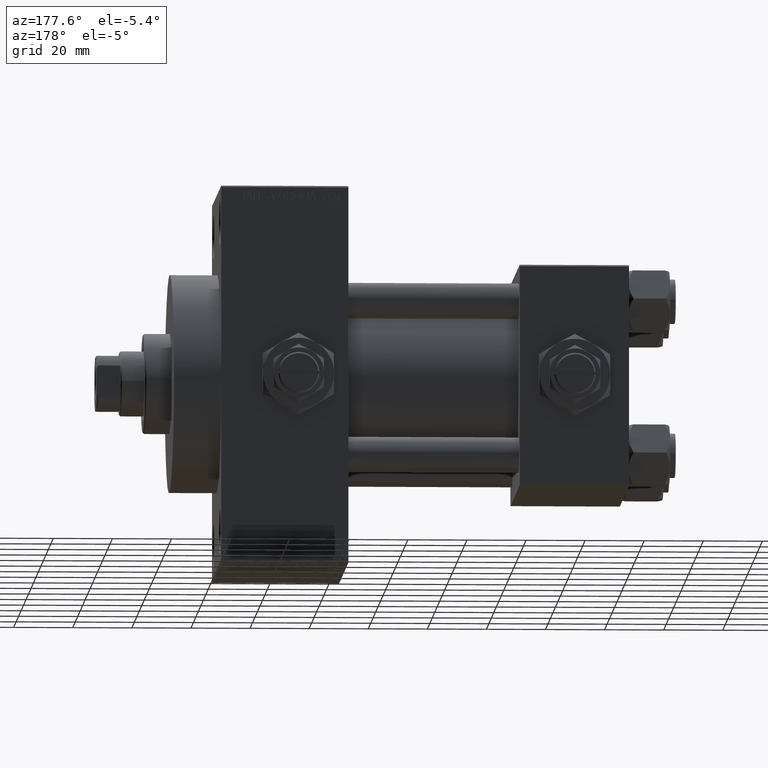
[diagram: clean part render]
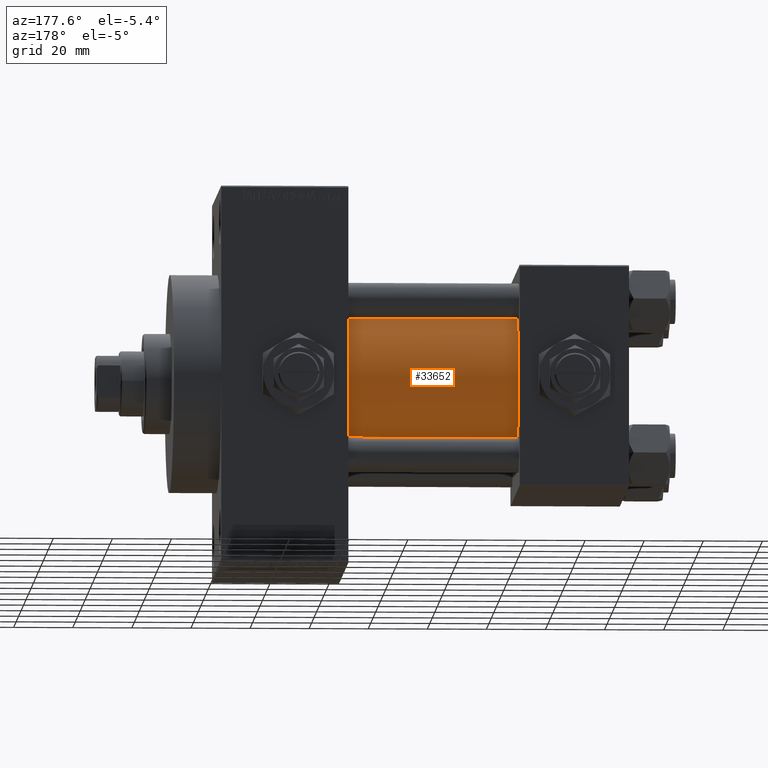
[diagram: same view with one face highlighted and labeled with its STEP entity id]
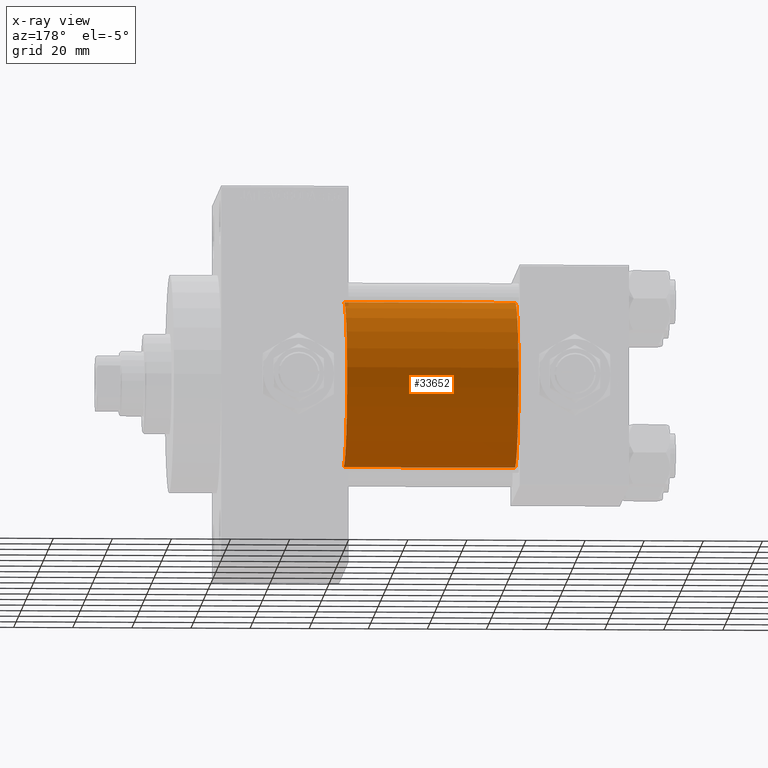
[diagram: x-ray of the same camera — body ghosted, the highlighted face saturated]
A machine part, auxiliary view. The second image highlights one B-rep face of the part: STEP entity #33652.
The next image is the same camera in x-ray: the body ghosted, the highlighted face saturated — about 2% of this face is hidden behind the body in this view.
In plain terms, the highlighted cylindrical surface (partial cylindrical patch) has radius 28 mm, axis along (-1, -0, -0).
Its self-contained STEP definition (entity closure, byte-faithful):
#2617 = EDGE_CURVE ( 'NONE', #33499, #17161, #37315, .T. ) ;
#3452 = CARTESIAN_POINT ( 'NONE',  ( 95.00000000000000000, -2.602085213965210642E-15, 28.00000000000000000 ) ) ;
#6069 = CARTESIAN_POINT ( 'NONE',  ( 37.00000000000000000, -2.602085213965210642E-15, 28.00000000000000000 ) ) ;
#6470 = DIRECTION ( 'NONE',  ( 1.000000000000000000, -0.000000000000000000, 0.000000000000000000 ) ) ;
#6843 = AXIS2_PLACEMENT_3D ( 'NONE', #29644, #6470, #22674 ) ;
#7008 = ORIENTED_EDGE ( 'NONE', *, *, #2617, .F. ) ;
#11138 = LINE ( 'NONE', #38026, #14965 ) ;
#12490 = DIRECTION ( 'NONE',  ( 0.000000000000000000, 0.000000000000000000, -1.000000000000000000 ) ) ;
#14054 = ORIENTED_EDGE ( 'NONE', *, *, #42734, .T. ) ;
#14866 = AXIS2_PLACEMENT_3D ( 'NONE', #42277, #34568, #42747 ) ;
#14965 = VECTOR ( 'NONE', #38513, 1000.000000000000000 ) ;
#15843 = ORIENTED_EDGE ( 'NONE', *, *, #32551, .T. ) ;
#17161 = VERTEX_POINT ( 'NONE', #3452 ) ;
#20486 = ORIENTED_EDGE ( 'NONE', *, *, #39965, .F. ) ;
#22077 = CARTESIAN_POINT ( 'NONE',  ( 95.00000000000000000, 8.269258236473776482E-16, -28.00000000000000000 ) ) ;
#22674 = DIRECTION ( 'NONE',  ( 0.000000000000000000, 0.000000000000000000, 1.000000000000000000 ) ) ;
#24383 = CIRCLE ( 'NONE', #6843, 28.00000000000000000 ) ;
#26274 = CARTESIAN_POINT ( 'NONE',  ( 37.00000000000000000, 8.269258236473776482E-16, -28.00000000000000000 ) ) ;
#26529 = EDGE_LOOP ( 'NONE', ( #7008, #14054, #15843, #20486 ) ) ;
#29644 = CARTESIAN_POINT ( 'NONE',  ( 37.00000000000000000, -2.602085213965210642E-15, 0.000000000000000000 ) ) ;
#32551 = EDGE_CURVE ( 'NONE', #40338, #39132, #24383, .T. ) ;
#33499 = VERTEX_POINT ( 'NONE', #34392 ) ;
#33652 = ADVANCED_FACE ( 'NONE', ( #42033 ), #39016, .T. ) ;
#34392 = CARTESIAN_POINT ( 'NONE',  ( 95.00000000000000000, 8.269258236473776482E-16, -28.00000000000000000 ) ) ;
#34568 = DIRECTION ( 'NONE',  ( -1.000000000000000000, -0.000000000000000000, -0.000000000000000000 ) ) ;
#35729 = CARTESIAN_POINT ( 'NONE',  ( 95.00000000000000000, -2.602085213965210642E-15, 0.000000000000000000 ) ) ;
#37315 = CIRCLE ( 'NONE', #43676, 28.00000000000000000 ) ;
#38026 = CARTESIAN_POINT ( 'NONE',  ( 95.00000000000000000, -2.602085213965210642E-15, 28.00000000000000000 ) ) ;
#38513 = DIRECTION ( 'NONE',  ( -1.000000000000000000, -0.000000000000000000, -0.000000000000000000 ) ) ;
#39016 = CYLINDRICAL_SURFACE ( 'NONE', #14866, 28.00000000000000000 ) ;
#39132 = VERTEX_POINT ( 'NONE', #6069 ) ;
#39965 = EDGE_CURVE ( 'NONE', #17161, #39132, #11138, .T. ) ;
#40338 = VERTEX_POINT ( 'NONE', #26274 ) ;
#42033 = FACE_OUTER_BOUND ( 'NONE', #26529, .T. ) ;
#42277 = CARTESIAN_POINT ( 'NONE',  ( 95.00000000000000000, -2.602085213965210642E-15, 0.000000000000000000 ) ) ;
#42734 = EDGE_CURVE ( 'NONE', #33499, #40338, #44251, .T. ) ;
#42747 = DIRECTION ( 'NONE',  ( 0.000000000000000000, 0.000000000000000000, 1.000000000000000000 ) ) ;
#43676 = AXIS2_PLACEMENT_3D ( 'NONE', #35729, #43696, #12490 ) ;
#43696 = DIRECTION ( 'NONE',  ( 1.000000000000000000, 0.000000000000000000, 0.000000000000000000 ) ) ;
#44251 = LINE ( 'NONE', #22077, #44507 ) ;
#44507 = VECTOR ( 'NONE', #45261, 1000.000000000000000 ) ;
#45261 = DIRECTION ( 'NONE',  ( -1.000000000000000000, -0.000000000000000000, -0.000000000000000000 ) ) ;